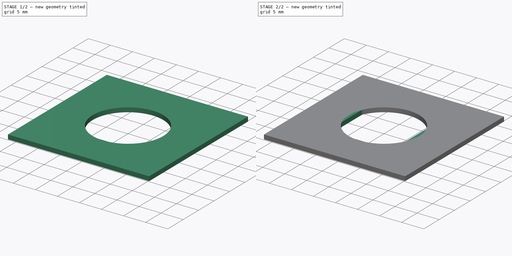
[diagram: build sequence overview — one tinted view per stage of 2, left to right]
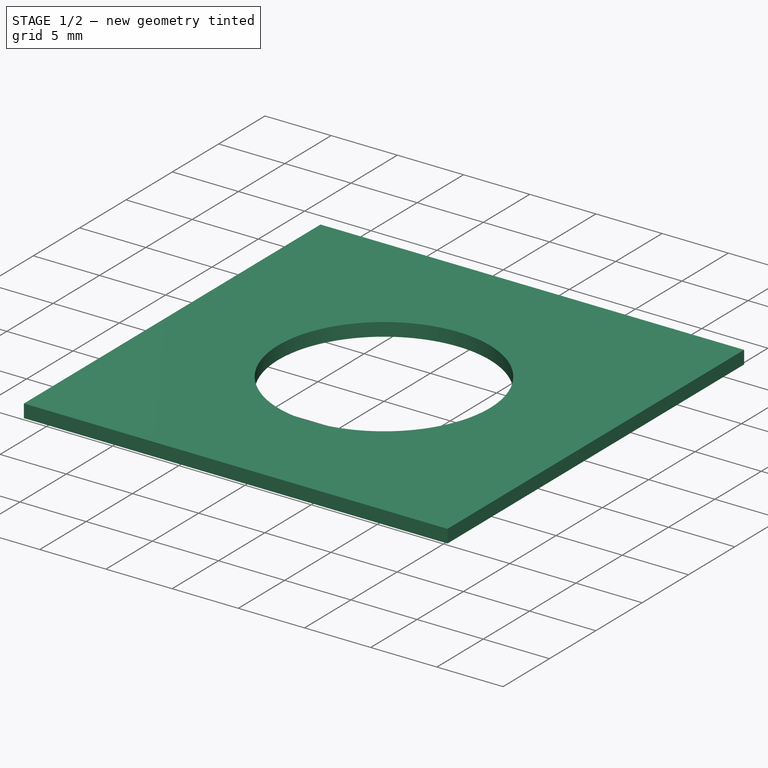
[diagram: stage 1 of 2 — iso view after this stage's code; geometry added in this stage tinted green]
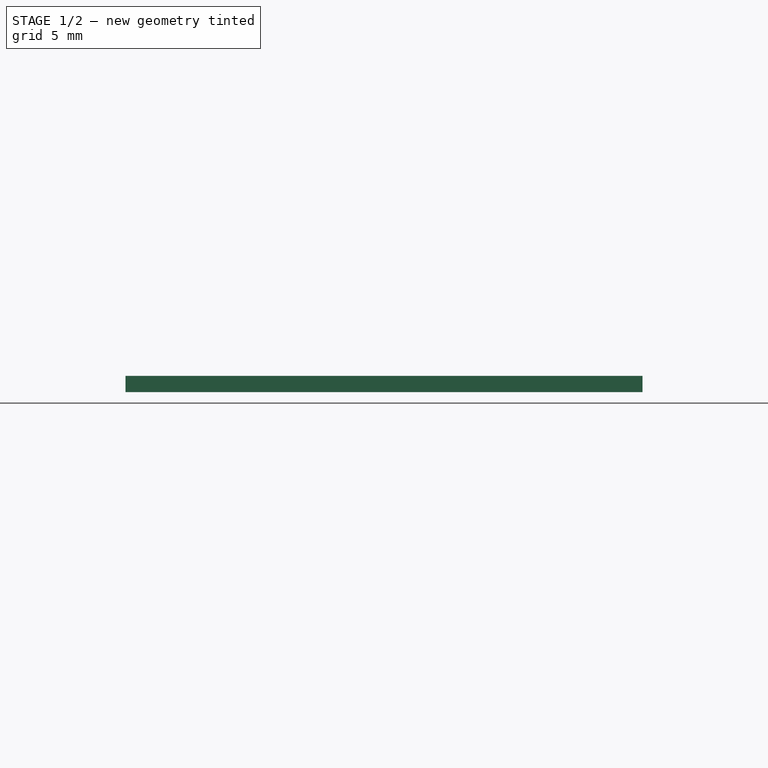
[diagram: stage 1 of 2 — front view after this stage's code; geometry added in this stage tinted green]
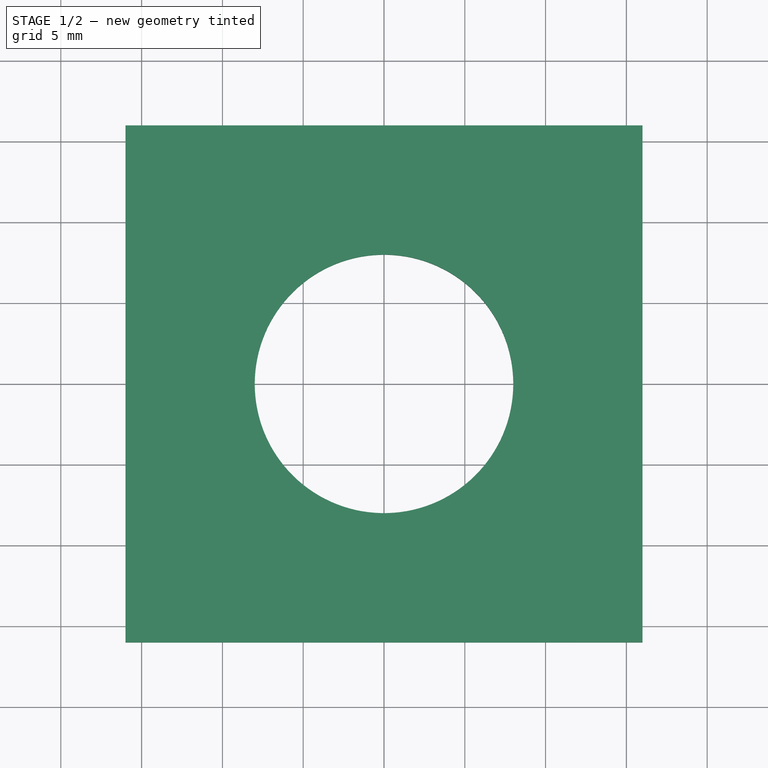
[diagram: stage 1 of 2 — top view after this stage's code; geometry added in this stage tinted green]
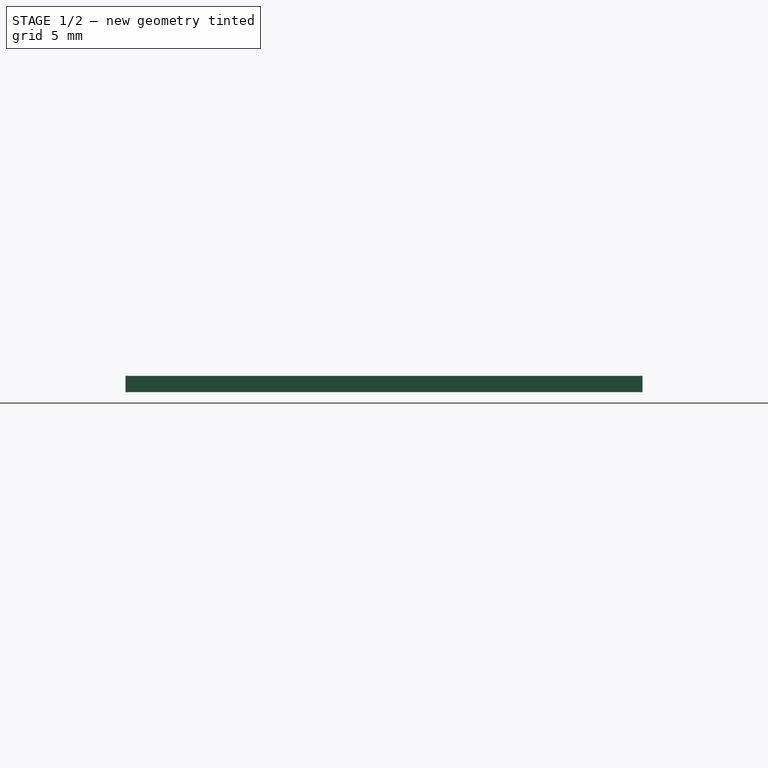
[diagram: stage 1 of 2 — right view after this stage's code; geometry added in this stage tinted green]
FCSTD DOCUMENT  (FreeCAD 0.21R33668 +26 (Git))
Label: Microphone Test Cutout
License: All rights reserved
LicenseURL: https://en.wikipedia.org/wiki/All_rights_reserved
objects: Sketcher::SketchObject×2, PartDesign::Pad×2, PartDesign::Body×1
note: 7 computed .brp shape members not serialized (recipe doc carries the construction recipe); baked Part::Feature solids carry a one-line shape summary decoded from their .brp

FEATURE [Sketcher::SketchObject] Sketch
  FullyConstrained = true
  MapMode = 5
  Support = -> [XY_Plane]
  sketch-geometry (5):
    g0: Circle CenterX=0 CenterY=0 CenterZ=0 NormalX=0 NormalY=0 NormalZ=1 AngleXU=0 Radius=8
    g1: LineSegment StartX=-16 StartY=16 StartZ=0 EndX=16 EndY=16 EndZ=0
    g2: LineSegment StartX=16 StartY=16 StartZ=0 EndX=16 EndY=-16 EndZ=0
    g3: LineSegment StartX=16 StartY=-16 StartZ=0 EndX=-16 EndY=-16 EndZ=0
    g4: LineSegment StartX=-16 StartY=-16 StartZ=0 EndX=-16 EndY=16 EndZ=0
  constraints (13):
    c: Coincident(g0,g-1)
    c: Diameter(g0) = 16
    c: Coincident(g1,g2)
    c: Coincident(g2,g3)
    c: Coincident(g3,g4)
    c: Coincident(g4,g1)
    c: Horizontal(g1)
    c: Horizontal(g3)
    c: Vertical(g2)
    c: Vertical(g4)
    c: Symmetric(g2,g1,g0)
    c: Equal(g1,g2)
    c: DistanceX(g1,g1) = 32
FEATURE [PartDesign::Pad] Pad
  Direction = (0,0,1)
  Length = 1
  Length2 = 10
  Profile = -> Sketch
  ReferenceAxis = -> Sketch [N_Axis]
  Type = 0
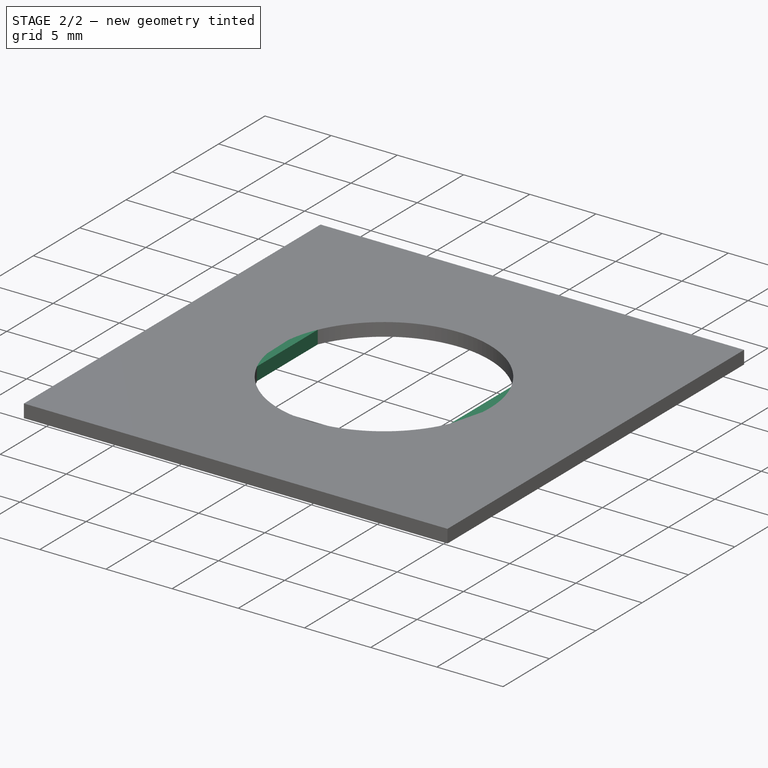
[diagram: stage 2 of 2 — iso view after this stage's code; geometry added in this stage tinted green]
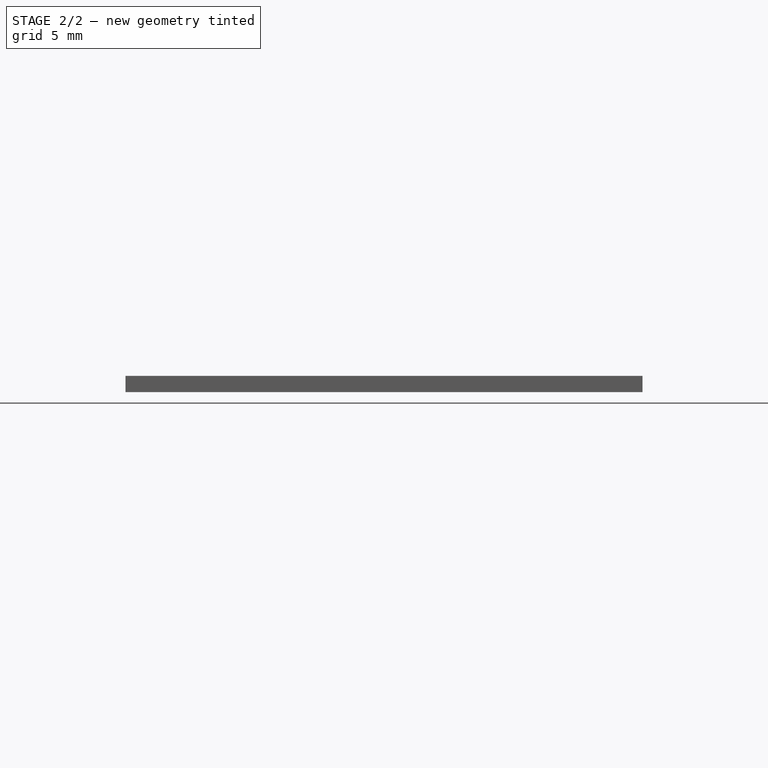
[diagram: stage 2 of 2 — front view after this stage's code; geometry added in this stage tinted green]
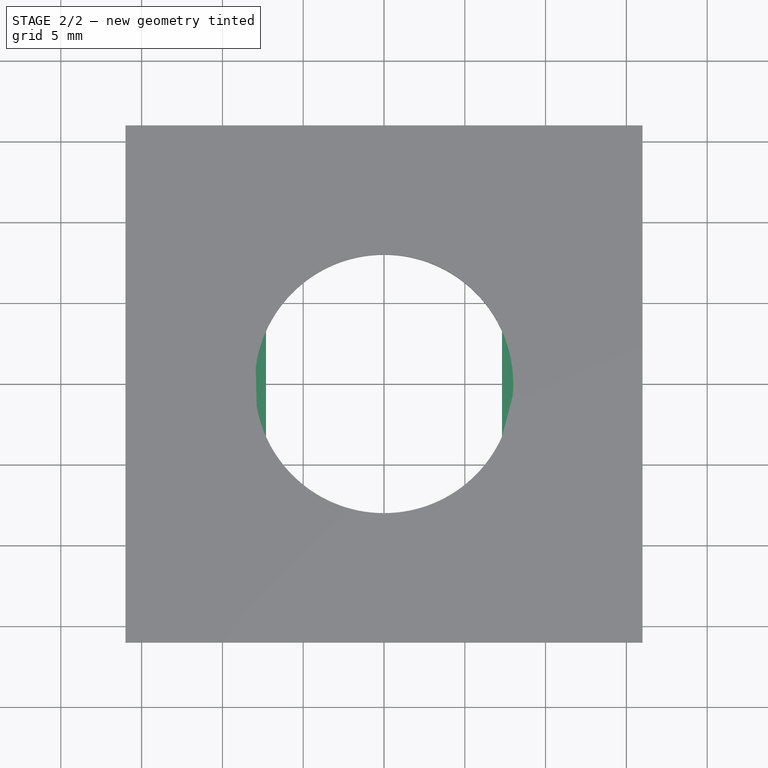
[diagram: stage 2 of 2 — top view after this stage's code; geometry added in this stage tinted green]
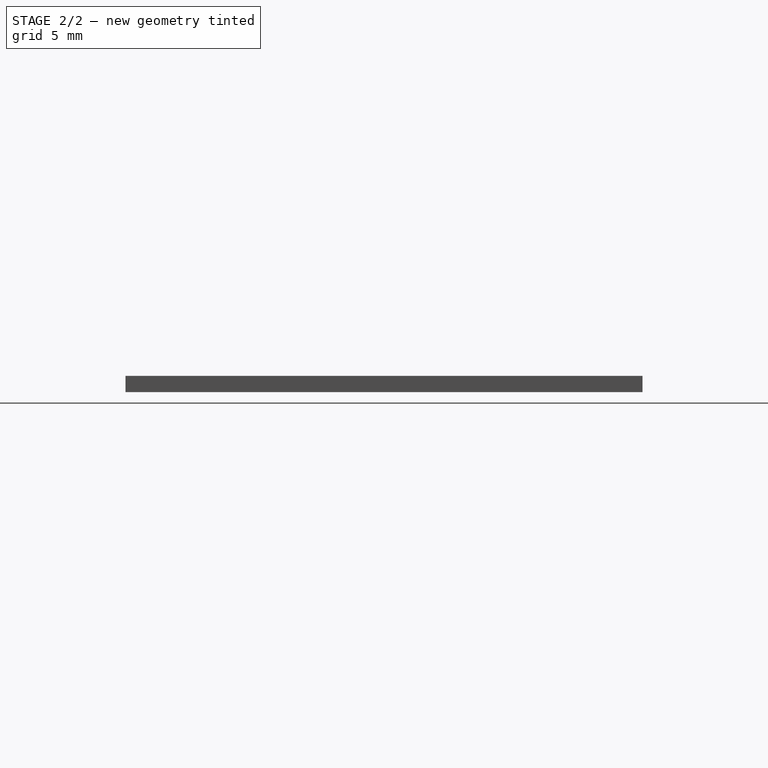
[diagram: stage 2 of 2 — right view after this stage's code; geometry added in this stage tinted green]
FEATURE [Sketcher::SketchObject] Sketch001
  FullyConstrained = true
  MapMode = 5
  Placement = pos=(0,0,1) rot=(0,0,1;0rad)
  Support = -> [Pad]
  expr: Constraints[18] = 14.6 mm / 2
  expr: Constraints[19] = 14.6 mm / 2
  sketch-geometry (8):
    g0: LineSegment StartX=-7.3 StartY=4 StartZ=0 EndX=-9.3 EndY=4 EndZ=0
    g1: LineSegment StartX=-9.3 StartY=4 StartZ=0 EndX=-9.3 EndY=-4 EndZ=0
    g2: LineSegment StartX=-9.3 StartY=-4 StartZ=0 EndX=-7.3 EndY=-4 EndZ=0
    g3: LineSegment StartX=-7.3 StartY=-4 StartZ=0 EndX=-7.3 EndY=4 EndZ=0
    g4: LineSegment StartX=7.3 StartY=4 StartZ=0 EndX=9.3 EndY=4 EndZ=0
    g5: LineSegment StartX=9.3 StartY=4 StartZ=0 EndX=9.3 EndY=-4 EndZ=0
    g6: LineSegment StartX=9.3 StartY=-4 StartZ=0 EndX=7.3 EndY=-4 EndZ=0
    g7: LineSegment StartX=7.3 StartY=-4 StartZ=0 EndX=7.3 EndY=4 EndZ=0
  constraints (24):
    c: Coincident(g0,g1)
    c: Coincident(g1,g2)
    c: Coincident(g2,g3)
    c: Coincident(g3,g0)
    c: Horizontal(g0)
    c: Horizontal(g2)
    c: Vertical(g1)
    c: Vertical(g3)
    c: Coincident(g4,g5)
    c: Coincident(g5,g6)
    c: Coincident(g6,g7)
    c: Coincident(g7,g4)
    c: Horizontal(g4)
    c: Horizontal(g6)
    c: Vertical(g5)
    c: Vertical(g7)
    c: Equal(g3,g7)
    c: Equal(g2,g4)
    c: Distance(g-1,g3) = 7.3
    c: Distance(g-1,g7) = 7.3
    c: DistanceX(g0,g0) = 2
    c: DistanceY(g3,g3) = 8
    c: DistanceY(g-1,g0) = 4
    c: DistanceY(g-1,g4) = 4
FEATURE [PartDesign::Pad] Pad001
  BaseFeature = -> Pad
  Direction = (0,0,1)
  Length = 0
  Length2 = 1
  Offset = 6
  Profile = -> Sketch001
  ReferenceAxis = -> Sketch001 [N_Axis]
  Type = 4
FEATURE [PartDesign::Body] Body
  Group = -> [Sketch,Pad,Sketch001,Pad001]
  Origin = -> Origin
  Tip = -> Pad001
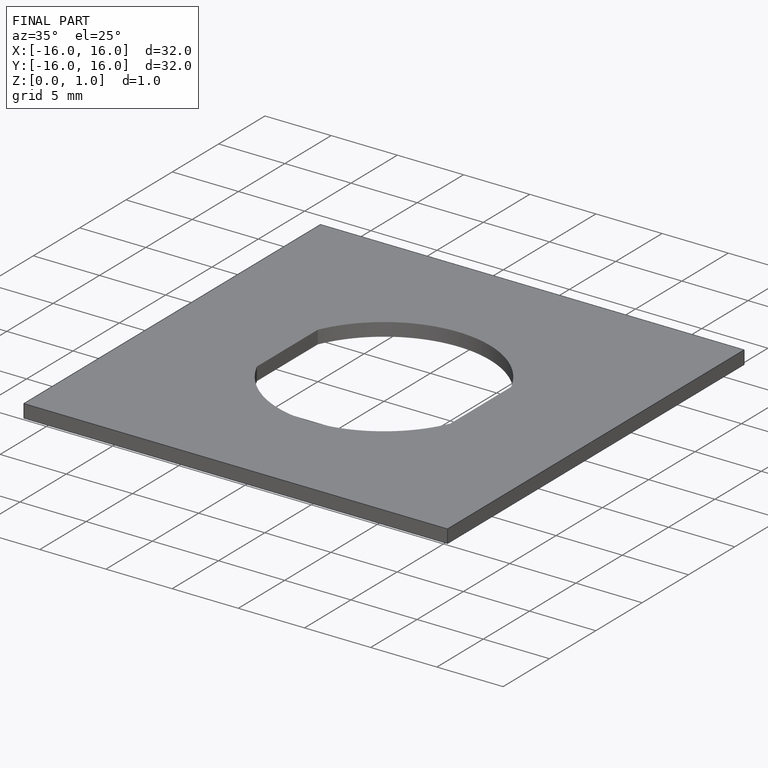
[diagram: finished part — iso view with bounding-box wireframe]
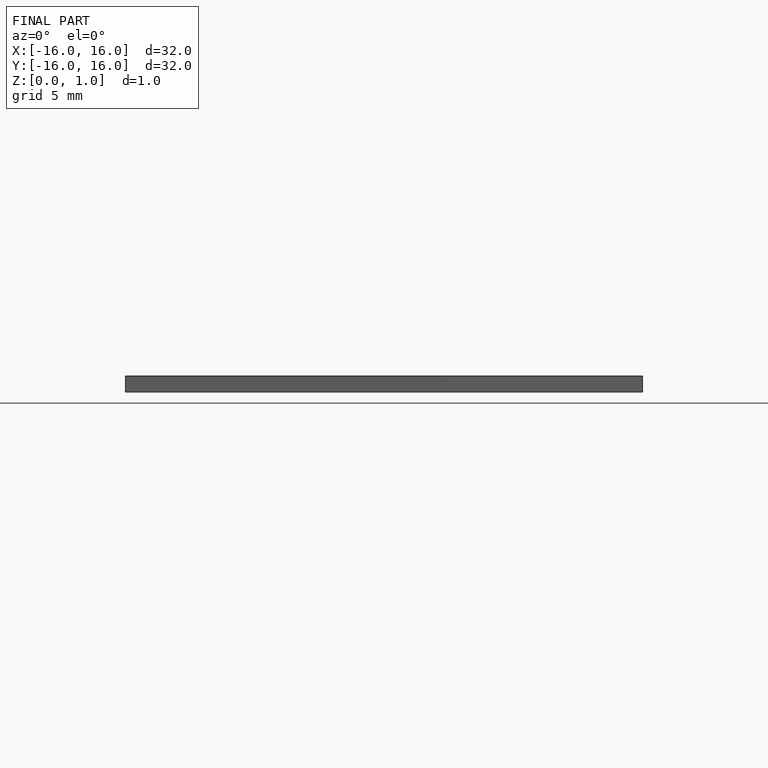
[diagram: finished part — front view with bounding-box wireframe]
